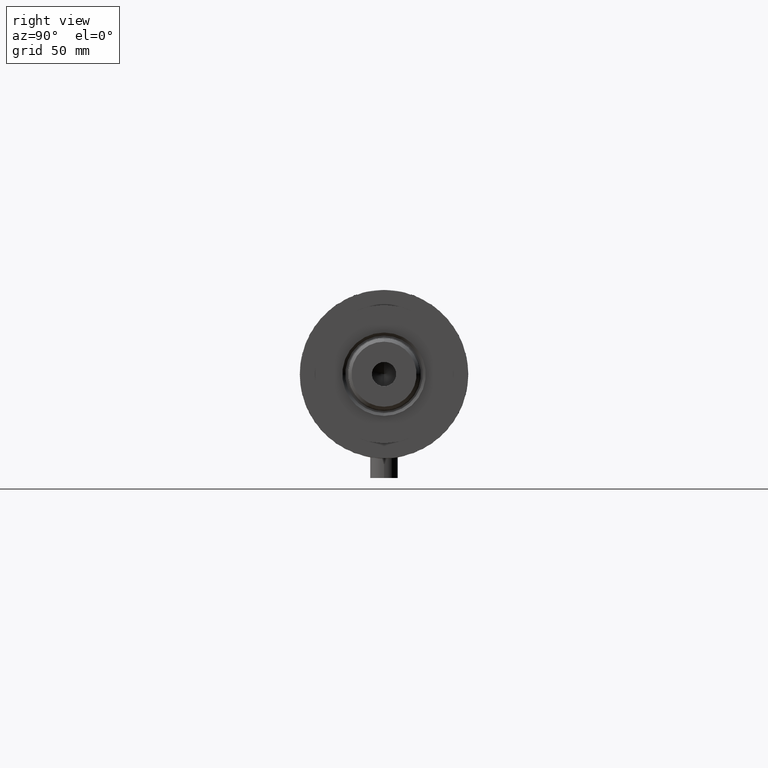
[diagram: clean part render]
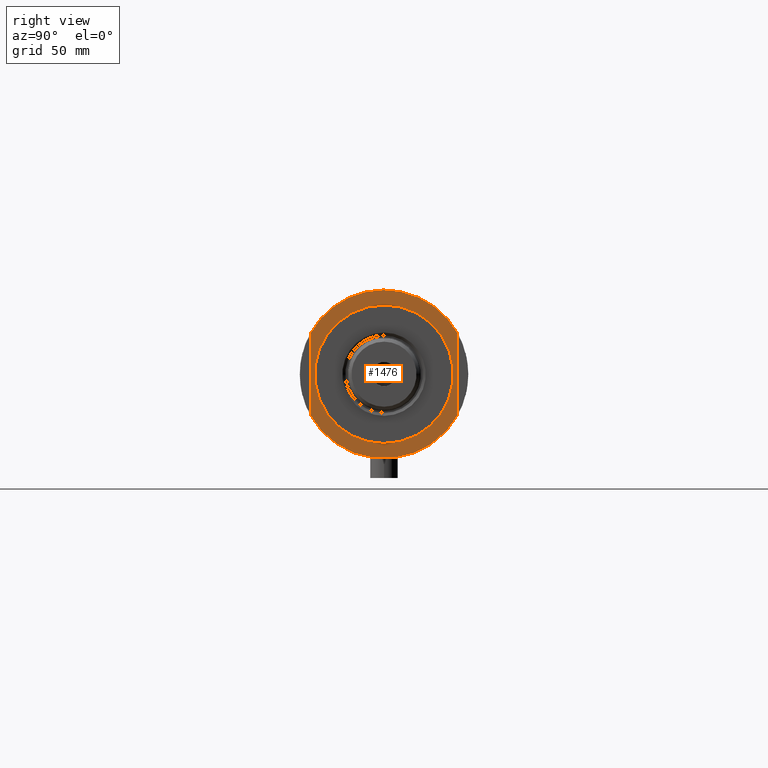
[diagram: same view with one face highlighted and labeled with its STEP entity id]
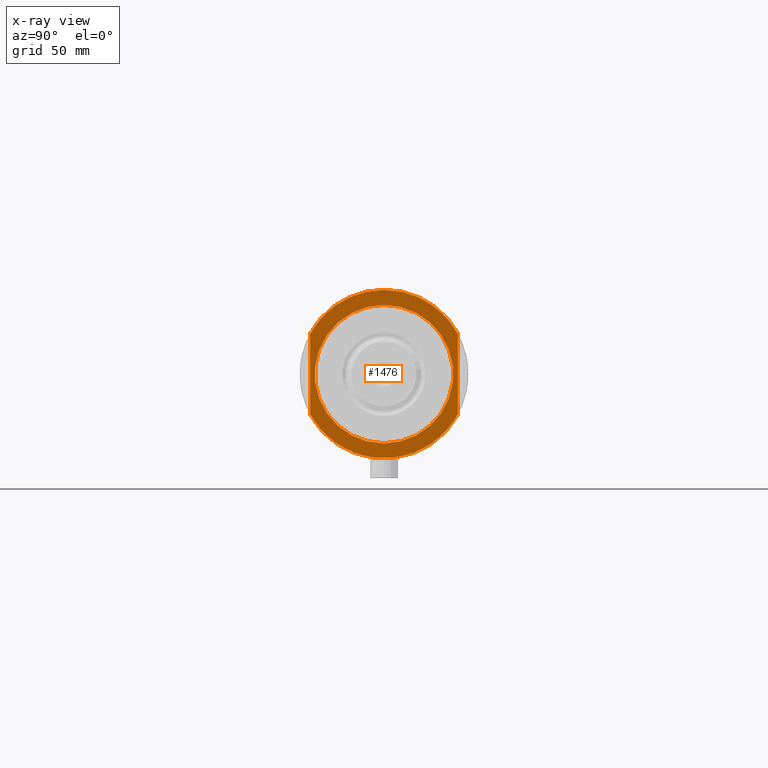
[diagram: x-ray of the same camera — body ghosted, the highlighted face saturated]
A machine part, right view. The second image highlights one B-rep face of the part: STEP entity #1476.
The next image is the same camera in x-ray: the body ghosted, the highlighted face saturated — about 0% of this face is hidden behind the body in this view.
In plain terms, the highlighted planar face has unit normal (1, 0, -0).
Its self-contained STEP definition (entity closure, byte-faithful):
#1 = LINE ( 'NONE', #1431, #391 ) ;
#39 = VERTEX_POINT ( 'NONE', #2338 ) ;
#59 = ORIENTED_EDGE ( 'NONE', *, *, #1765, .T. ) ;
#124 = EDGE_CURVE ( 'NONE', #39, #606, #1, .T. ) ;
#149 = AXIS2_PLACEMENT_3D ( 'NONE', #442, #4232, #2092 ) ;
#289 = CARTESIAN_POINT ( 'NONE',  ( 0.000000000000000000, 0.000000000000000000, 25.19999999999999929 ) ) ;
#391 = VECTOR ( 'NONE', #1754, 1000.000000000000000 ) ;
#442 = CARTESIAN_POINT ( 'NONE',  ( 0.000000000000000000, 0.000000000000000000, 25.19999999999999929 ) ) ;
#536 = DIRECTION ( 'NONE',  ( -0.000000000000000000, -0.000000000000000000, -1.000000000000000000 ) ) ;
#606 = VERTEX_POINT ( 'NONE', #2909 ) ;
#694 = CIRCLE ( 'NONE', #3205, 30.00000000000000355 ) ;
#905 = CIRCLE ( 'NONE', #1910, 36.50000000000000000 ) ;
#997 = DIRECTION ( 'NONE',  ( 0.000000000000000000, 0.000000000000000000, 1.000000000000000000 ) ) ;
#1072 = EDGE_LOOP ( 'NONE', ( #3638, #3859, #3669, #2144, #1085 ) ) ;
#1085 = ORIENTED_EDGE ( 'NONE', *, *, #2187, .T. ) ;
#1282 = DIRECTION ( 'NONE',  ( 0.000000000000000000, 0.000000000000000000, 1.000000000000000000 ) ) ;
#1304 = DIRECTION ( 'NONE',  ( -0.000000000000000000, -0.000000000000000000, -1.000000000000000000 ) ) ;
#1314 = CIRCLE ( 'NONE', #2316, 36.50000000000000000 ) ;
#1431 = CARTESIAN_POINT ( 'NONE',  ( -17.55704986607943141, -32.00000000000000000, 25.19999999999999929 ) ) ;
#1463 = ORIENTED_EDGE ( 'NONE', *, *, #3694, .T. ) ;
#1476 = ADVANCED_FACE ( 'NONE', ( #2027, #4080 ), #4394, .T. ) ;
#1500 = LINE ( 'NONE', #2482, #3311 ) ;
#1647 = EDGE_CURVE ( 'NONE', #2912, #2735, #1500, .T. ) ;
#1673 = CARTESIAN_POINT ( 'NONE',  ( 0.000000000000000000, 0.000000000000000000, 25.19999999999999929 ) ) ;
#1754 = DIRECTION ( 'NONE',  ( -1.000000000000000000, -0.000000000000000000, -0.000000000000000000 ) ) ;
#1765 = EDGE_CURVE ( 'NONE', #1978, #4483, #3596, .T. ) ;
#1861 = CARTESIAN_POINT ( 'NONE',  ( -36.50000000000000000, 0.000000000000000000, 25.19999999999999929 ) ) ;
#1910 = AXIS2_PLACEMENT_3D ( 'NONE', #1673, #1282, #4376 ) ;
#1929 = DIRECTION ( 'NONE',  ( 1.000000000000000000, 0.000000000000000000, 0.000000000000000000 ) ) ;
#1978 = VERTEX_POINT ( 'NONE', #3256 ) ;
#2014 = VERTEX_POINT ( 'NONE', #1861 ) ;
#2027 = FACE_BOUND ( 'NONE', #4063, .T. ) ;
#2092 = DIRECTION ( 'NONE',  ( 1.000000000000000000, 0.000000000000000000, 0.000000000000000000 ) ) ;
#2144 = ORIENTED_EDGE ( 'NONE', *, *, #2758, .T. ) ;
#2187 = EDGE_CURVE ( 'NONE', #2014, #606, #1314, .T. ) ;
#2316 = AXIS2_PLACEMENT_3D ( 'NONE', #3652, #2339, #4355 ) ;
#2338 = CARTESIAN_POINT ( 'NONE',  ( 17.55704986607943496, -32.00000000000000000, 25.19999999999999929 ) ) ;
#2339 = DIRECTION ( 'NONE',  ( 0.000000000000000000, 0.000000000000000000, 1.000000000000000000 ) ) ;
#2369 = DIRECTION ( 'NONE',  ( 1.000000000000000000, 0.000000000000000000, -0.000000000000000000 ) ) ;
#2482 = CARTESIAN_POINT ( 'NONE',  ( -17.55704986607943141, 32.00000000000000000, 25.19999999999999929 ) ) ;
#2580 = CARTESIAN_POINT ( 'NONE',  ( 0.000000000000000000, 0.000000000000000000, 25.19999999999999929 ) ) ;
#2677 = CARTESIAN_POINT ( 'NONE',  ( 17.55704986607943496, 32.00000000000000000, 25.19999999999999929 ) ) ;
#2735 = VERTEX_POINT ( 'NONE', #2677 ) ;
#2758 = EDGE_CURVE ( 'NONE', #2912, #2014, #3275, .T. ) ;
#2827 = DIRECTION ( 'NONE',  ( 1.000000000000000000, 0.000000000000000000, 0.000000000000000000 ) ) ;
#2896 = EDGE_CURVE ( 'NONE', #39, #2735, #905, .T. ) ;
#2909 = CARTESIAN_POINT ( 'NONE',  ( -17.55704986607943496, -32.00000000000000000, 25.19999999999999929 ) ) ;
#2912 = VERTEX_POINT ( 'NONE', #3121 ) ;
#3121 = CARTESIAN_POINT ( 'NONE',  ( -17.55704986607943496, 32.00000000000000000, 25.19999999999999929 ) ) ;
#3159 = AXIS2_PLACEMENT_3D ( 'NONE', #289, #997, #2369 ) ;
#3205 = AXIS2_PLACEMENT_3D ( 'NONE', #4455, #1304, #3988 ) ;
#3256 = CARTESIAN_POINT ( 'NONE',  ( 30.00000000000000355, 0.000000000000000000, 25.19999999999999929 ) ) ;
#3275 = CIRCLE ( 'NONE', #149, 36.50000000000000000 ) ;
#3311 = VECTOR ( 'NONE', #2827, 1000.000000000000000 ) ;
#3313 = AXIS2_PLACEMENT_3D ( 'NONE', #2580, #536, #1929 ) ;
#3596 = CIRCLE ( 'NONE', #3313, 30.00000000000000355 ) ;
#3638 = ORIENTED_EDGE ( 'NONE', *, *, #124, .F. ) ;
#3652 = CARTESIAN_POINT ( 'NONE',  ( 0.000000000000000000, 0.000000000000000000, 25.19999999999999929 ) ) ;
#3669 = ORIENTED_EDGE ( 'NONE', *, *, #1647, .F. ) ;
#3694 = EDGE_CURVE ( 'NONE', #4483, #1978, #694, .T. ) ;
#3776 = CARTESIAN_POINT ( 'NONE',  ( -30.00000000000000355, 3.673940397442059178E-15, 25.19999999999999929 ) ) ;
#3859 = ORIENTED_EDGE ( 'NONE', *, *, #2896, .T. ) ;
#3988 = DIRECTION ( 'NONE',  ( 1.000000000000000000, 0.000000000000000000, 0.000000000000000000 ) ) ;
#4063 = EDGE_LOOP ( 'NONE', ( #59, #1463 ) ) ;
#4080 = FACE_OUTER_BOUND ( 'NONE', #1072, .T. ) ;
#4232 = DIRECTION ( 'NONE',  ( 0.000000000000000000, 0.000000000000000000, 1.000000000000000000 ) ) ;
#4355 = DIRECTION ( 'NONE',  ( 1.000000000000000000, 0.000000000000000000, 0.000000000000000000 ) ) ;
#4376 = DIRECTION ( 'NONE',  ( 1.000000000000000000, 0.000000000000000000, 0.000000000000000000 ) ) ;
#4394 = PLANE ( 'NONE',  #3159 ) ;
#4455 = CARTESIAN_POINT ( 'NONE',  ( 0.000000000000000000, 0.000000000000000000, 25.19999999999999929 ) ) ;
#4483 = VERTEX_POINT ( 'NONE', #3776 ) ;